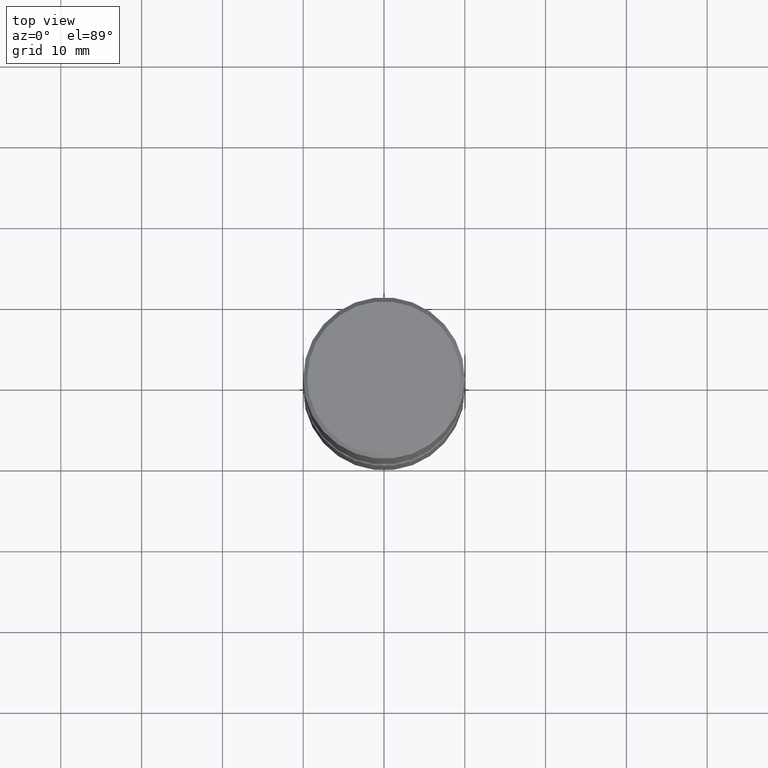
[diagram: clean part render]
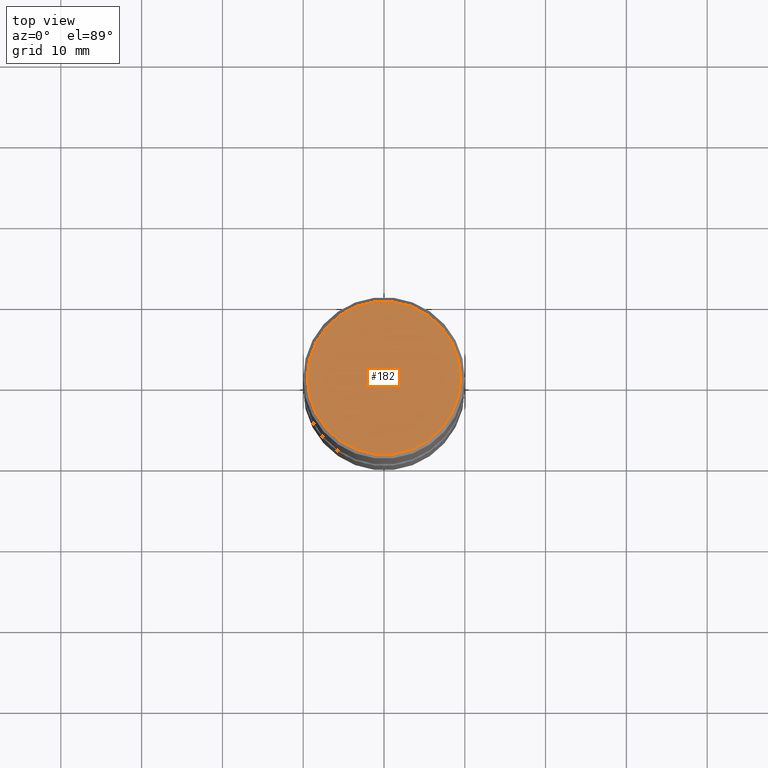
[diagram: same view with one face highlighted and labeled with its STEP entity id]
A machine part, top view. The second image highlights one B-rep face of the part: STEP entity #182.
In plain terms, the highlighted planar face has unit normal (0, -0, -1).
Its self-contained STEP definition (entity closure, byte-faithful):
#21 = DIRECTION ( 'NONE',  ( -1.000000000000000000, 6.982962677686265922E-15, -4.876176775795935793E-29 ) ) ;
#49 = EDGE_CURVE ( 'NONE', #167, #304, #211, .T. ) ;
#56 = DIRECTION ( 'NONE',  ( 2.438088387897960049E-29, -3.491481338843145188E-15, -1.000000000000000000 ) ) ;
#63 = DIRECTION ( 'NONE',  ( 1.000000000000000000, -6.982962677686266711E-15, 4.876212485538972316E-29 ) ) ;
#71 = CARTESIAN_POINT ( 'NONE',  ( -3.131554243005659264E-46, 4.471029511141341874E-32, 1.280553747030123384E-17 ) ) ;
#102 = AXIS2_PLACEMENT_3D ( 'NONE', #287, #56, #21 ) ;
#148 = EDGE_CURVE ( 'NONE', #304, #167, #459, .T. ) ;
#151 = DIRECTION ( 'NONE',  ( 1.000000000000000000, -6.982962677686266711E-15, 4.876212485538972316E-29 ) ) ;
#167 = VERTEX_POINT ( 'NONE', #546 ) ;
#182 = ADVANCED_FACE ( 'NONE', ( #540 ), #218, .F. ) ;
#211 = CIRCLE ( 'NONE', #427, 0.3737000000000002542 ) ;
#214 = EDGE_LOOP ( 'NONE', ( #441, #560 ) ) ;
#218 = PLANE ( 'NONE',  #102 ) ;
#239 = DIRECTION ( 'NONE',  ( -2.445468806185136597E-29, 3.491481338843145583E-15, 1.000000000000000000 ) ) ;
#266 = CARTESIAN_POINT ( 'NONE',  ( -0.3737000000000002542, 2.644447966039791030E-15, 1.280553747028286201E-17 ) ) ;
#287 = CARTESIAN_POINT ( 'NONE',  ( 2.609533152651358987E-15, 0.3737000000000002542, -1.298363807590533784E-15 ) ) ;
#304 = VERTEX_POINT ( 'NONE', #266 ) ;
#356 = AXIS2_PLACEMENT_3D ( 'NONE', #71, #374, #151 ) ;
#374 = DIRECTION ( 'NONE',  ( -2.445468806185136597E-29, 3.491481338843145583E-15, 1.000000000000000000 ) ) ;
#427 = AXIS2_PLACEMENT_3D ( 'NONE', #502, #239, #63 ) ;
#441 = ORIENTED_EDGE ( 'NONE', *, *, #148, .T. ) ;
#459 = CIRCLE ( 'NONE', #356, 0.3737000000000002542 ) ;
#502 = CARTESIAN_POINT ( 'NONE',  ( -3.131554243005659264E-46, 4.471029511141341874E-32, 1.280553747030123384E-17 ) ) ;
#540 = FACE_OUTER_BOUND ( 'NONE', #214, .T. ) ;
#546 = CARTESIAN_POINT ( 'NONE',  ( 0.3737000000000002542, -2.667287895133369937E-15, 1.280553747031968579E-17 ) ) ;
#560 = ORIENTED_EDGE ( 'NONE', *, *, #49, .T. ) ;